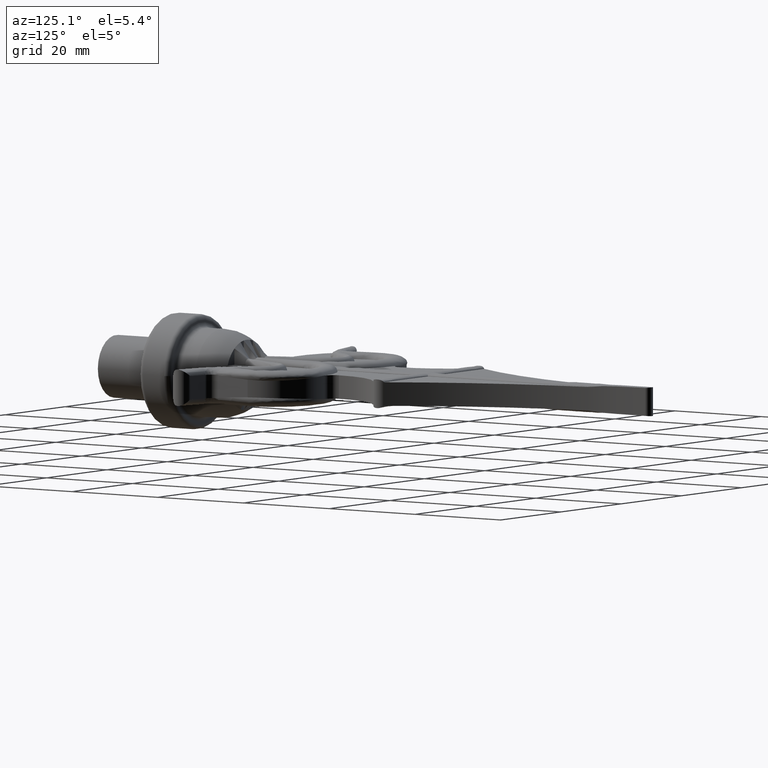
[diagram: clean part render]
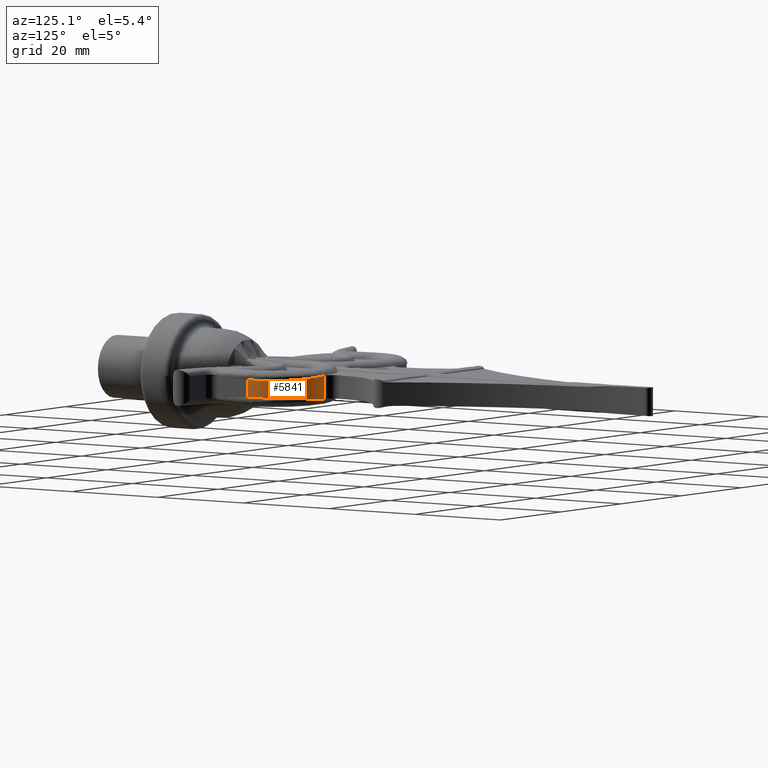
[diagram: same view with one face highlighted and labeled with its STEP entity id]
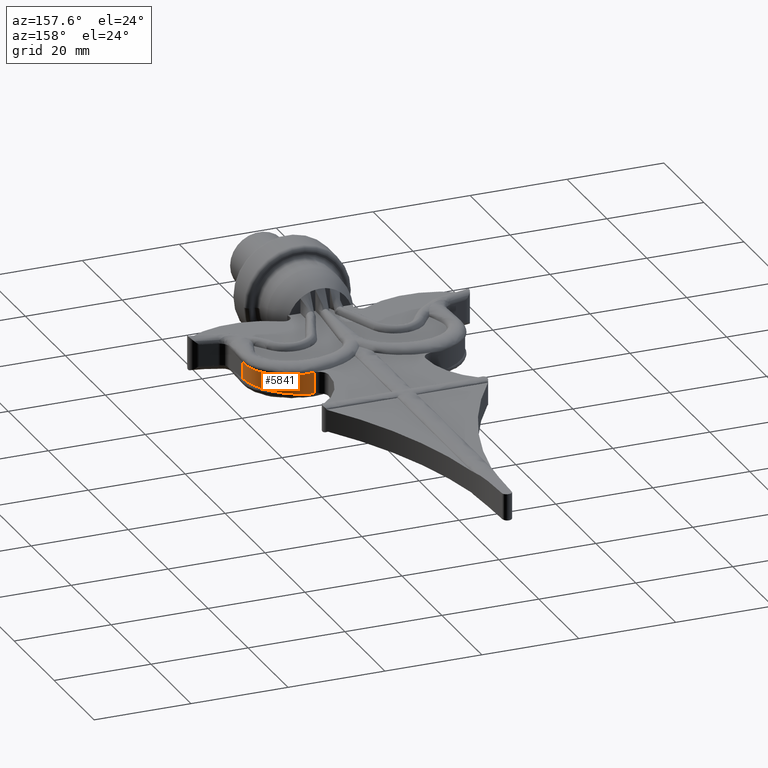
[diagram: same view with one face highlighted and labeled with its STEP entity id]
A machine part, auxiliary view. The second image highlights one B-rep face of the part: STEP entity #5841.
A second angle (auxiliary view) of the same face is appended — the face is thin or edge-on in the first view.
In plain terms, the highlighted cylindrical surface (partial cylindrical patch) has radius 10.5 mm, axis along (-0, -0, -1).
Its self-contained STEP definition (entity closure, byte-faithful):
#620 = CARTESIAN_POINT ( 'NONE',  ( 20.91803276458101024, 52.05296838992988029, 1.682841053434992018 ) ) ;
#631 = ORIENTED_EDGE ( 'NONE', *, *, #12330, .F. ) ;
#659 = CARTESIAN_POINT ( 'NONE',  ( 18.93669866729672080, 54.41268470287570835, -1.786614941527890688 ) ) ;
#858 = CARTESIAN_POINT ( 'NONE',  ( 17.26188445647263237, 55.59288613833327730, -1.883643088041797586 ) ) ;
#887 = AXIS2_PLACEMENT_3D ( 'NONE', #3958, #2408, #10016 ) ;
#1036 = ORIENTED_EDGE ( 'NONE', *, *, #12997, .T. ) ;
#2025 = CARTESIAN_POINT ( 'NONE',  ( 17.26188445647263237, 55.59288613833327730, 1.883643088041797586 ) ) ;
#2200 = CARTESIAN_POINT ( 'NONE',  ( 14.72391208504158300, 56.64636577085218505, -2.043761635481395000 ) ) ;
#2226 = CARTESIAN_POINT ( 'NONE',  ( 12.00000000000000000, 56.99999999999999289, 2.250000000000000444 ) ) ;
#2408 = DIRECTION ( 'NONE',  ( -0.000000000000000000, -0.000000000000000000, -1.000000000000000000 ) ) ;
#2668 = B_SPLINE_CURVE_WITH_KNOTS ( 'NONE', 3,
 ( #9751, #14424, #10005, #14547, #12954, #14355, #18971, #9813, #16083, #11353, #17624, #5291, #18901, #659, #12889, #6919, #858, #12752, #14492, #3616, #5158, #2200, #3755, #15825, #5350, #16015 ),
 .UNSPECIFIED., .F., .F.,
 ( 4, 2, 2, 2, 2, 2, 2, 2, 2, 2, 2, 2, 4 ),
 ( 1.388456241783856658E-17, 0.001037589440685740289, 0.002075178881371466701, 0.004150357762742919523, 0.005187947203428653307, 0.006225536644114386224, 0.008300715525485854659, 0.01037589440685732223, 0.01141348384754305167, 0.01245107328822878112, 0.01348866272891451230, 0.01452625216960024175, 0.01660143105097170585 ),
 .UNSPECIFIED. ) ;
#2998 = CARTESIAN_POINT ( 'NONE',  ( 12.00000000000000000, 56.99999999999999289, 2.250000000000000444 ) ) ;
#3579 = CARTESIAN_POINT ( 'NONE',  ( 18.40594290323285165, 54.84744024312739441, 1.816712355797645673 ) ) ;
#3616 = CARTESIAN_POINT ( 'NONE',  ( 15.70622266805110989, 56.33018896993793589, -1.979259397623559291 ) ) ;
#3755 = CARTESIAN_POINT ( 'NONE',  ( 14.38789512543178084, 56.73067231015466660, -2.066741775593773589 ) ) ;
#3958 = CARTESIAN_POINT ( 'NONE',  ( 11.99999999999998579, 46.49999999999998579, 2.250000000000000444 ) ) ;
#4330 = LINE ( 'NONE', #2998, #10507 ) ;
#5049 = CARTESIAN_POINT ( 'NONE',  ( 15.38246006084050066, 56.44622538150908042, 2.000065017378266141 ) ) ;
#5093 = VERTEX_POINT ( 'NONE', #17589 ) ;
#5099 = B_SPLINE_CURVE_WITH_KNOTS ( 'NONE', 3,
 ( #8292, #15783, #6567, #5186, #6631, #6496, #14188, #11312, #11177, #15851, #620, #17181, #12787, #11245, #3579, #6692, #2025, #12714, #8156, #11114, #5049, #12918, #9842, #15714, #18858, #2226 ),
 .UNSPECIFIED., .F., .F.,
 ( 4, 2, 2, 2, 2, 2, 2, 2, 2, 2, 2, 2, 4 ),
 ( 1.388456241783856658E-17, 0.001037589440685740289, 0.002075178881371466701, 0.004150357762742919523, 0.005187947203428653307, 0.006225536644114386224, 0.008300715525485854659, 0.01037589440685732223, 0.01141348384754305167, 0.01245107328822878112, 0.01348866272891451230, 0.01452625216960024175, 0.01660143105097170585 ),
 .UNSPECIFIED. ) ;
#5158 = CARTESIAN_POINT ( 'NONE',  ( 15.38246006084050066, 56.44622538150908042, -2.000065017378266141 ) ) ;
#5186 = CARTESIAN_POINT ( 'NONE',  ( 22.41462095095681306, 47.88036475350027388, 1.666537562659348382 ) ) ;
#5246 = LINE ( 'NONE', #5951, #10719 ) ;
#5291 = CARTESIAN_POINT ( 'NONE',  ( 20.34815528195536416, 52.90510489431392216, -1.709985867215650046 ) ) ;
#5350 = CARTESIAN_POINT ( 'NONE',  ( 12.68924568001589392, 57.00000000000039790, -2.191438809877757521 ) ) ;
#5841 = ADVANCED_FACE ( 'NONE', ( #12417 ), #6201, .T. ) ;
#5951 = CARTESIAN_POINT ( 'NONE',  ( 22.50000000000000711, 46.49999999999998579, 2.250000000000000444 ) ) ;
#6201 = CYLINDRICAL_SURFACE ( 'NONE', #887, 10.50000000000001421 ) ;
#6496 = CARTESIAN_POINT ( 'NONE',  ( 22.16157683465366190, 49.23185691689455723, 1.648315016067932737 ) ) ;
#6567 = CARTESIAN_POINT ( 'NONE',  ( 22.48290567029077280, 47.19168281213298854, 1.681936734517856857 ) ) ;
#6631 = CARTESIAN_POINT ( 'NONE',  ( 22.36338918744018400, 48.22274085250405307, 1.660542420591881507 ) ) ;
#6692 = CARTESIAN_POINT ( 'NONE',  ( 17.55501083213427549, 55.41674382428281120, 1.866324123792834078 ) ) ;
#6919 = CARTESIAN_POINT ( 'NONE',  ( 17.55501083213427549, 55.41674382428281120, -1.866324123792834078 ) ) ;
#8118 = EDGE_CURVE ( 'NONE', #8521, #5093, #5099, .T. ) ;
#8156 = CARTESIAN_POINT ( 'NONE',  ( 16.34266255522653921, 56.06608507077469028, 1.939301212541072905 ) ) ;
#8292 = CARTESIAN_POINT ( 'NONE',  ( 22.50000000000000711, 46.49999999999998579, 1.701842445558464867 ) ) ;
#8521 = VERTEX_POINT ( 'NONE', #11635 ) ;
#9302 = CARTESIAN_POINT ( 'NONE',  ( 22.50000000000000711, 46.49999999999998579, -1.701842445558464867 ) ) ;
#9751 = CARTESIAN_POINT ( 'NONE',  ( 22.50000000000000711, 46.49999999999998579, -1.701842445558464867 ) ) ;
#9813 = CARTESIAN_POINT ( 'NONE',  ( 21.56845818475171939, 50.83734459322560895, -1.657298874731756078 ) ) ;
#9842 = CARTESIAN_POINT ( 'NONE',  ( 14.38789512543178084, 56.73067231015466660, 2.066741775593773589 ) ) ;
#10005 = CARTESIAN_POINT ( 'NONE',  ( 22.48290567029077280, 47.19168281213298854, -1.681936734517856857 ) ) ;
#10016 = DIRECTION ( 'NONE',  ( -1.000000000000000000, 0.000000000000000000, 0.000000000000000000 ) ) ;
#10507 = VECTOR ( 'NONE', #13755, 1000.000000000000000 ) ;
#10719 = VECTOR ( 'NONE', #18369, 1000.000000000000000 ) ;
#11114 = CARTESIAN_POINT ( 'NONE',  ( 15.70622266805110989, 56.33018896993793589, 1.979259397623559291 ) ) ;
#11177 = CARTESIAN_POINT ( 'NONE',  ( 21.41979057646053874, 51.15148514304603111, 1.662228042160236230 ) ) ;
#11245 = CARTESIAN_POINT ( 'NONE',  ( 18.93669866729672080, 54.41268470287570835, 1.786614941527890688 ) ) ;
#11312 = CARTESIAN_POINT ( 'NONE',  ( 21.56845818475171939, 50.83734459322560895, 1.657298874731756078 ) ) ;
#11353 = CARTESIAN_POINT ( 'NONE',  ( 21.09450622196165170, 51.75915631247574566, -1.675011085326473026 ) ) ;
#11635 = CARTESIAN_POINT ( 'NONE',  ( 22.50000000000000711, 46.49999999999998579, 1.701842445558464867 ) ) ;
#12330 = EDGE_CURVE ( 'NONE', #5093, #17573, #4330, .T. ) ;
#12417 = FACE_OUTER_BOUND ( 'NONE', #14679, .T. ) ;
#12714 = CARTESIAN_POINT ( 'NONE',  ( 16.65629838877725177, 55.91737180282437691, 1.920093538904208419 ) ) ;
#12752 = CARTESIAN_POINT ( 'NONE',  ( 16.65629838877725177, 55.91737180282437691, -1.920093538904208419 ) ) ;
#12787 = CARTESIAN_POINT ( 'NONE',  ( 19.91468596242092914, 53.43441516814910131, 1.732868732221060970 ) ) ;
#12889 = CARTESIAN_POINT ( 'NONE',  ( 18.40594290323285165, 54.84744024312739441, -1.816712355797645673 ) ) ;
#12918 = CARTESIAN_POINT ( 'NONE',  ( 14.72391208504158300, 56.64636577085218505, 2.043761635481395000 ) ) ;
#12954 = CARTESIAN_POINT ( 'NONE',  ( 22.36338918744018400, 48.22274085250405307, -1.660542420591881507 ) ) ;
#12997 = EDGE_CURVE ( 'NONE', #13331, #17573, #2668, .T. ) ;
#13331 = VERTEX_POINT ( 'NONE', #9302 ) ;
#13755 = DIRECTION ( 'NONE',  ( -0.000000000000000000, -0.000000000000000000, -1.000000000000000000 ) ) ;
#14188 = CARTESIAN_POINT ( 'NONE',  ( 21.96292937712694737, 49.88553376017462426, 1.647763599294629122 ) ) ;
#14355 = CARTESIAN_POINT ( 'NONE',  ( 22.16157683465366190, 49.23185691689455723, -1.648315016067932737 ) ) ;
#14424 = CARTESIAN_POINT ( 'NONE',  ( 22.50000000000000000, 46.84634698790031138, -1.691313900715535334 ) ) ;
#14492 = CARTESIAN_POINT ( 'NONE',  ( 16.34266255522653921, 56.06608507077469028, -1.939301212541072905 ) ) ;
#14547 = CARTESIAN_POINT ( 'NONE',  ( 22.41462095095681306, 47.88036475350027388, -1.666537562659348382 ) ) ;
#14623 = EDGE_CURVE ( 'NONE', #8521, #13331, #5246, .T. ) ;
#14670 = CARTESIAN_POINT ( 'NONE',  ( 12.00000000000000000, 56.99999999999999289, -2.250000000000000444 ) ) ;
#14679 = EDGE_LOOP ( 'NONE', ( #18416, #16578, #1036, #631 ) ) ;
#15714 = CARTESIAN_POINT ( 'NONE',  ( 13.37420361855394368, 56.93246665971777531, 2.138871377362946191 ) ) ;
#15783 = CARTESIAN_POINT ( 'NONE',  ( 22.50000000000000000, 46.84634698790031138, 1.691313900715535334 ) ) ;
#15825 = CARTESIAN_POINT ( 'NONE',  ( 13.37420361855394368, 56.93246665971777531, -2.138871377362946191 ) ) ;
#15851 = CARTESIAN_POINT ( 'NONE',  ( 21.09450622196165170, 51.75915631247574566, 1.675011085326473026 ) ) ;
#16015 = CARTESIAN_POINT ( 'NONE',  ( 12.00000000000000000, 56.99999999999999289, -2.250000000000000444 ) ) ;
#16083 = CARTESIAN_POINT ( 'NONE',  ( 21.41979057646053874, 51.15148514304603111, -1.662228042160236230 ) ) ;
#16578 = ORIENTED_EDGE ( 'NONE', *, *, #14623, .T. ) ;
#17181 = CARTESIAN_POINT ( 'NONE',  ( 20.34815528195536416, 52.90510489431392216, 1.709985867215650046 ) ) ;
#17573 = VERTEX_POINT ( 'NONE', #14670 ) ;
#17589 = CARTESIAN_POINT ( 'NONE',  ( 12.00000000000000000, 56.99999999999999289, 2.250000000000000444 ) ) ;
#17624 = CARTESIAN_POINT ( 'NONE',  ( 20.91803276458101024, 52.05296838992988029, -1.682841053434992018 ) ) ;
#18369 = DIRECTION ( 'NONE',  ( -0.000000000000000000, -0.000000000000000000, -1.000000000000000000 ) ) ;
#18416 = ORIENTED_EDGE ( 'NONE', *, *, #8118, .F. ) ;
#18858 = CARTESIAN_POINT ( 'NONE',  ( 12.68924568001589392, 57.00000000000039790, 2.191438809877757521 ) ) ;
#18901 = CARTESIAN_POINT ( 'NONE',  ( 19.91468596242092914, 53.43441516814910131, -1.732868732221060970 ) ) ;
#18971 = CARTESIAN_POINT ( 'NONE',  ( 21.96292937712694737, 49.88553376017462426, -1.647763599294629122 ) ) ;